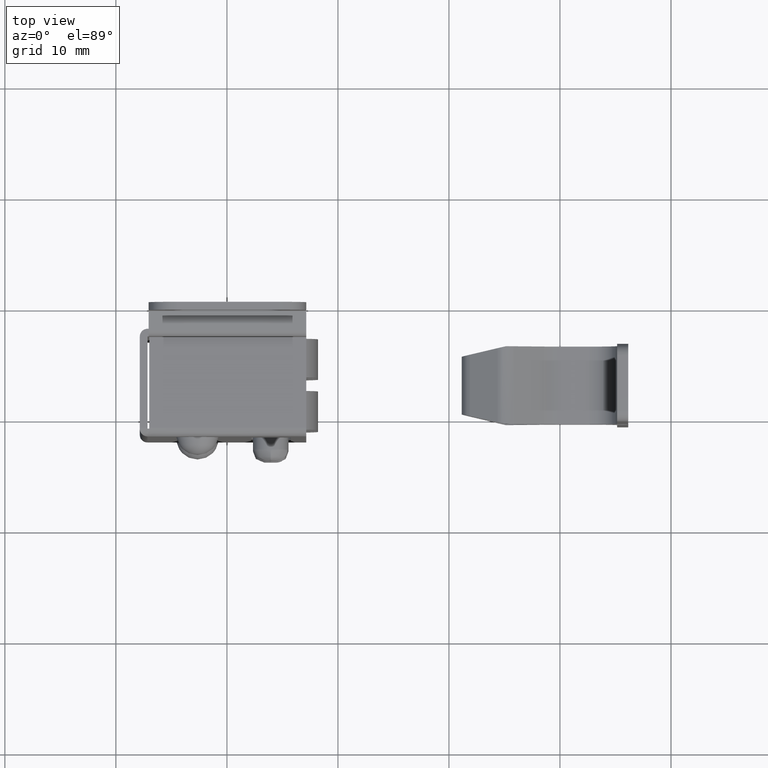
[diagram: clean part render]
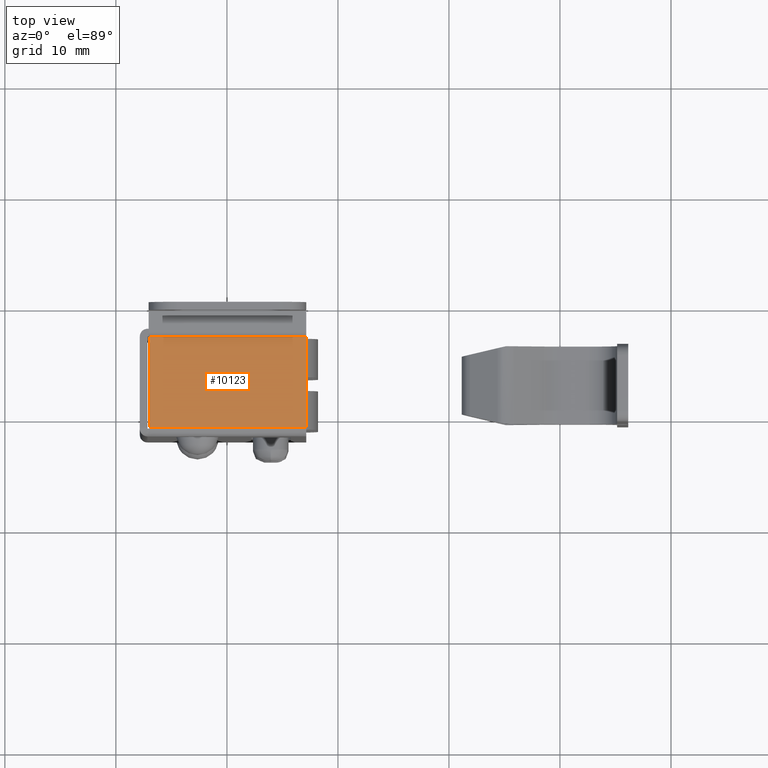
[diagram: same view with one face highlighted and labeled with its STEP entity id]
A machine part, top view. The second image highlights one B-rep face of the part: STEP entity #10123.
In plain terms, the highlighted face is a freeform B-spline surface patch.
Its self-contained STEP definition (entity closure, byte-faithful):
#7787=CARTESIAN_POINT('',(7.150029999999900,-11.199999999999999,-4.0));
#7788=VERTEX_POINT('',#7787);
#7801=CARTESIAN_POINT('',(-6.999982000000201,-11.199999999999999,-4.0));
#7802=VERTEX_POINT('',#7801);
#7803=CARTESIAN_POINT('',(-6.999982000000201,-11.199999999999999,-4.0));
#7804=CARTESIAN_POINT('',(7.150029999999900,-11.199999999999999,-4.0));
#7805=QUASI_UNIFORM_CURVE('',1,(#7803,#7804),.UNSPECIFIED.,.F.,.U.);
#7806=EDGE_CURVE('',#7802,#7788,#7805,.T.);
#9989=CARTESIAN_POINT('',(7.150029999999900,-3.050000000000000,-4.0));
#9990=VERTEX_POINT('',#9989);
#9991=CARTESIAN_POINT('',(-6.999982000000201,-3.050000000000000,-4.0));
#9992=VERTEX_POINT('',#9991);
#9993=CARTESIAN_POINT('',(7.150029999999900,-3.050000000000000,-4.0));
#9994=CARTESIAN_POINT('',(-6.999982000000201,-3.050000000000000,-4.0));
#9995=QUASI_UNIFORM_CURVE('',1,(#9993,#9994),.UNSPECIFIED.,.F.,.U.);
#9996=EDGE_CURVE('',#9990,#9992,#9995,.T.);
#10025=CARTESIAN_POINT('',(7.150029999999900,-11.199999999999999,-4.0));
#10026=CARTESIAN_POINT('',(7.150029999999900,-3.050000000000000,-4.0));
#10027=QUASI_UNIFORM_CURVE('',1,(#10025,#10026),.UNSPECIFIED.,.F.,.U.);
#10028=EDGE_CURVE('',#7788,#9990,#10027,.T.);
#10053=CARTESIAN_POINT('',(-6.999982000000201,-3.050000000000000,-4.0));
#10054=CARTESIAN_POINT('',(-6.999982000000201,-11.199999999999999,-4.0));
#10055=QUASI_UNIFORM_CURVE('',1,(#10053,#10054),.UNSPECIFIED.,.F.,.U.);
#10056=EDGE_CURVE('',#9992,#7802,#10055,.T.);
#10112=CARTESIAN_POINT('',(-7.706774939144548,-11.607092331190980,-4.0));
#10113=CARTESIAN_POINT('',(7.856823445188112,-11.607092331190980,-4.0));
#10114=CARTESIAN_POINT('',(-7.706774939144548,-2.642907304475628,-4.0));
#10115=CARTESIAN_POINT('',(7.856823445188112,-2.642907304475628,-4.0));
#10116=B_SPLINE_SURFACE_WITH_KNOTS('',1,1,((#10112,#10114),(#10113,#10115)),.UNSPECIFIED.,.F.,.F.,.U.,(2,2),(2,2),(0.0,15.563598384332661),(0.0,8.964185026715352),.UNSPECIFIED.);
#10117=ORIENTED_EDGE('',*,*,#10056,.T.);
#10118=ORIENTED_EDGE('',*,*,#7806,.T.);
#10119=ORIENTED_EDGE('',*,*,#10028,.T.);
#10120=ORIENTED_EDGE('',*,*,#9996,.T.);
#10121=EDGE_LOOP('',(#10117,#10118,#10119,#10120));
#10122=FACE_OUTER_BOUND('',#10121,.T.);
#10123=ADVANCED_FACE('',(#10122),#10116,.T.);